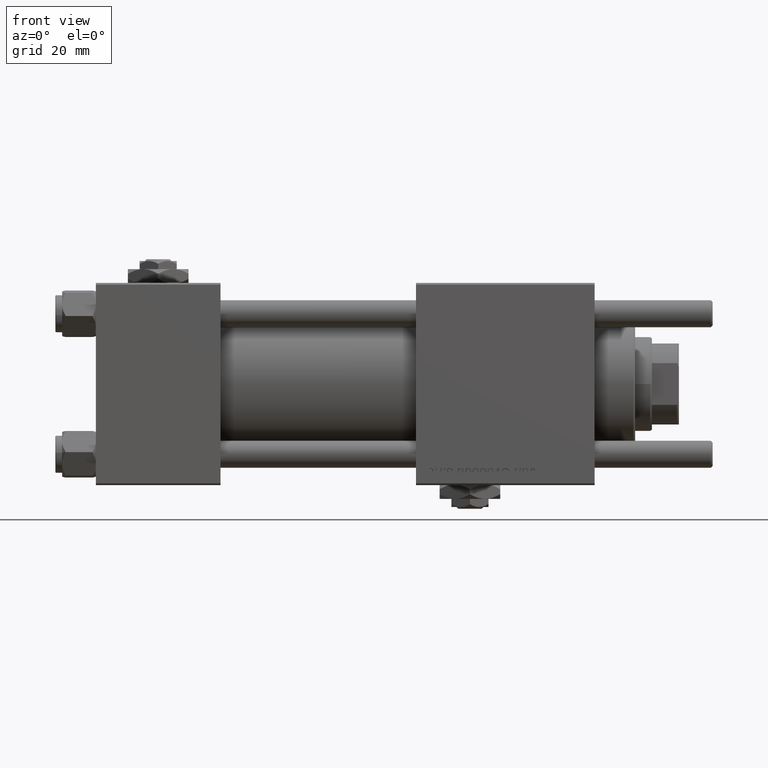
[diagram: clean part render]
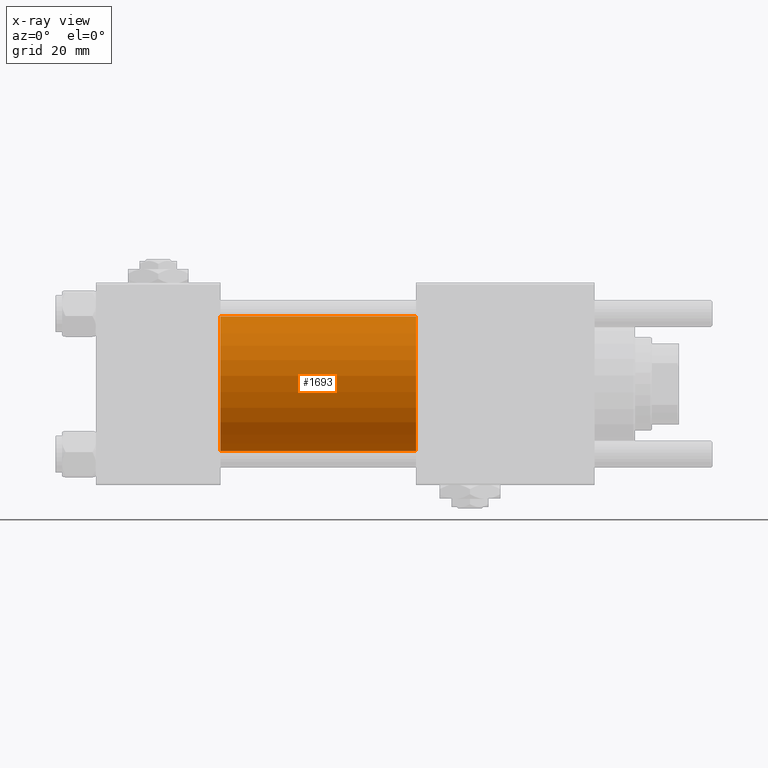
[diagram: x-ray — body ghosted, one internal face saturated and labeled with its STEP entity id]
A machine part, front view, then the same camera in x-ray: the body is ghosted and one INTERNAL B-rep face — a face not visible from any outside direction — is saturated and labeled: STEP entity #1693.
In plain terms, the highlighted cylindrical surface (partial cylindrical patch) has radius 20 mm, axis along (-1, -0, -0).
Its self-contained STEP definition (entity closure, byte-faithful):
#1693 = ADVANCED_FACE ( 'NONE', ( #25556 ), #7385, .F. ) ;
#3204 = DIRECTION ( 'NONE',  ( 0.000000000000000000, 0.000000000000000000, 1.000000000000000000 ) ) ;
#4357 = ORIENTED_EDGE ( 'NONE', *, *, #49680, .F. ) ;
#5947 = EDGE_CURVE ( 'NONE', #55269, #49728, #24702, .T. ) ;
#6556 = CARTESIAN_POINT ( 'NONE',  ( 37.00000000000000000, -1.527916156705046464E-16, -20.00000000000000000 ) ) ;
#7362 = DIRECTION ( 'NONE',  ( -1.000000000000000000, -0.000000000000000000, -0.000000000000000000 ) ) ;
#7385 = CYLINDRICAL_SURFACE ( 'NONE', #16954, 20.00000000000000000 ) ;
#7656 = LINE ( 'NONE', #35333, #32297 ) ;
#8758 = DIRECTION ( 'NONE',  ( 0.000000000000000000, 0.000000000000000000, -1.000000000000000000 ) ) ;
#9048 = CARTESIAN_POINT ( 'NONE',  ( 37.00000000000000000, -2.602085213965210642E-15, 0.000000000000000000 ) ) ;
#11402 = AXIS2_PLACEMENT_3D ( 'NONE', #53730, #26931, #48956 ) ;
#11491 = ORIENTED_EDGE ( 'NONE', *, *, #36087, .T. ) ;
#13228 = DIRECTION ( 'NONE',  ( 1.000000000000000000, 0.000000000000000000, 0.000000000000000000 ) ) ;
#16954 = AXIS2_PLACEMENT_3D ( 'NONE', #30890, #43993, #3204 ) ;
#19612 = LINE ( 'NONE', #46985, #42877 ) ;
#24702 = CIRCLE ( 'NONE', #11402, 20.00000000000000000 ) ;
#25556 = FACE_OUTER_BOUND ( 'NONE', #44835, .T. ) ;
#26931 = DIRECTION ( 'NONE',  ( 1.000000000000000000, 0.000000000000000000, 0.000000000000000000 ) ) ;
#28669 = ORIENTED_EDGE ( 'NONE', *, *, #5947, .T. ) ;
#28732 = VERTEX_POINT ( 'NONE', #6556 ) ;
#28784 = AXIS2_PLACEMENT_3D ( 'NONE', #9048, #13228, #8758 ) ;
#30890 = CARTESIAN_POINT ( 'NONE',  ( 95.00000000000000000, -2.602085213965210642E-15, 0.000000000000000000 ) ) ;
#32297 = VECTOR ( 'NONE', #7362, 1000.000000000000000 ) ;
#35333 = CARTESIAN_POINT ( 'NONE',  ( 95.00000000000000000, -1.527916156705046464E-16, -20.00000000000000000 ) ) ;
#36087 = EDGE_CURVE ( 'NONE', #49728, #28732, #7656, .T. ) ;
#40202 = VERTEX_POINT ( 'NONE', #41527 ) ;
#41527 = CARTESIAN_POINT ( 'NONE',  ( 37.00000000000000000, -2.602085213965210642E-15, 20.00000000000000000 ) ) ;
#42877 = VECTOR ( 'NONE', #50860, 1000.000000000000000 ) ;
#43993 = DIRECTION ( 'NONE',  ( -1.000000000000000000, -0.000000000000000000, -0.000000000000000000 ) ) ;
#44835 = EDGE_LOOP ( 'NONE', ( #28669, #11491, #4357, #58024 ) ) ;
#46985 = CARTESIAN_POINT ( 'NONE',  ( 95.00000000000000000, -2.602085213965210642E-15, 20.00000000000000000 ) ) ;
#48956 = DIRECTION ( 'NONE',  ( 0.000000000000000000, 0.000000000000000000, -1.000000000000000000 ) ) ;
#49680 = EDGE_CURVE ( 'NONE', #40202, #28732, #52540, .T. ) ;
#49728 = VERTEX_POINT ( 'NONE', #58763 ) ;
#50860 = DIRECTION ( 'NONE',  ( -1.000000000000000000, -0.000000000000000000, -0.000000000000000000 ) ) ;
#51763 = CARTESIAN_POINT ( 'NONE',  ( 95.00000000000000000, -2.602085213965210642E-15, 20.00000000000000000 ) ) ;
#52540 = CIRCLE ( 'NONE', #28784, 20.00000000000000000 ) ;
#53730 = CARTESIAN_POINT ( 'NONE',  ( 95.00000000000000000, -2.602085213965210642E-15, 0.000000000000000000 ) ) ;
#54337 = EDGE_CURVE ( 'NONE', #55269, #40202, #19612, .T. ) ;
#55269 = VERTEX_POINT ( 'NONE', #51763 ) ;
#58024 = ORIENTED_EDGE ( 'NONE', *, *, #54337, .F. ) ;
#58763 = CARTESIAN_POINT ( 'NONE',  ( 95.00000000000000000, -1.527916156705046464E-16, -20.00000000000000000 ) ) ;